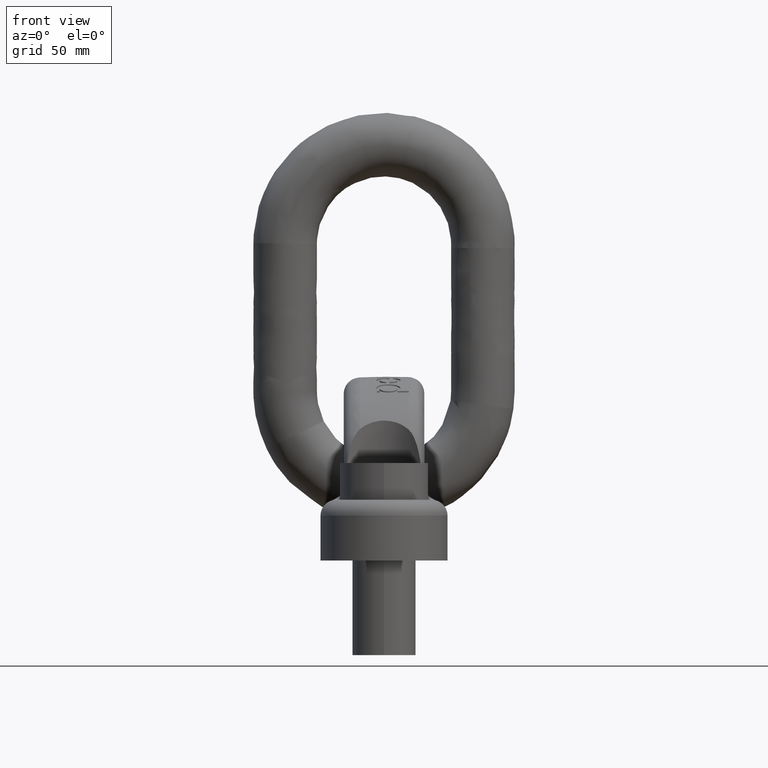
[diagram: clean part render]
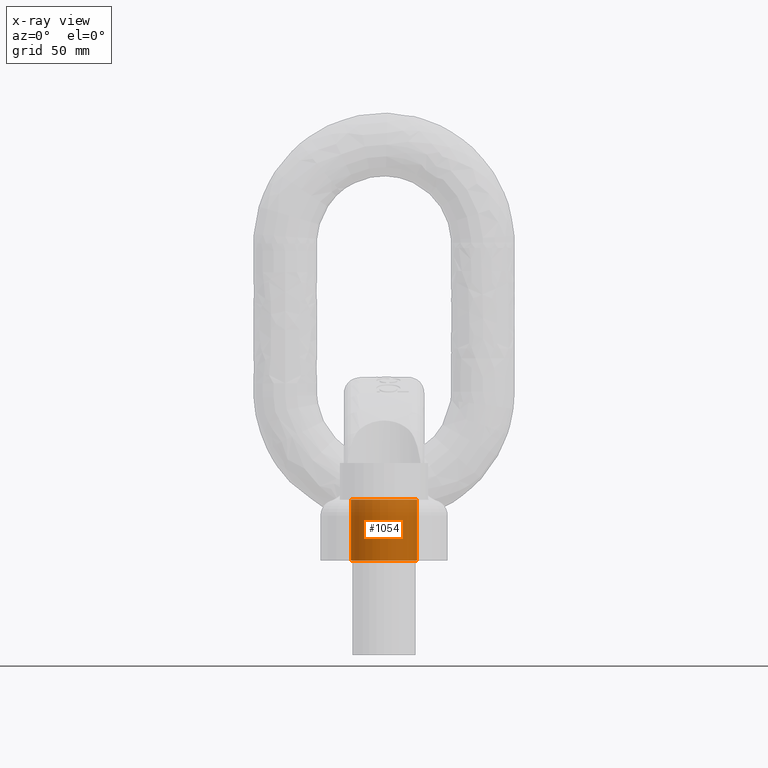
[diagram: x-ray — body ghosted, one internal face saturated and labeled with its STEP entity id]
A machine part, front view, then the same camera in x-ray: the body is ghosted and one INTERNAL B-rep face — a face not visible from any outside direction — is saturated and labeled: STEP entity #1054.
In plain terms, the highlighted cylindrical surface (bore or boss wall) has radius 23.5 mm, axis along (0, 0, 1).
Its self-contained STEP definition (entity closure, byte-faithful):
#1054=ADVANCED_FACE('',(#1484,#1485),#1181,.F.);
#1181=CYLINDRICAL_SURFACE('',#3739,23.5);
#1484=FACE_BOUND('',#1593,.T.);
#1485=FACE_BOUND('',#1594,.T.);
#1593=EDGE_LOOP('',(#2427));
#1594=EDGE_LOOP('',(#2428));
#2003=CIRCLE('',#3681,23.5);
#2009=CIRCLE('',#3690,23.5);
#2427=ORIENTED_EDGE('',*,*,#3323,.T.);
#2428=ORIENTED_EDGE('',*,*,#3331,.F.);
#3029=VERTEX_POINT('',#5302);
#3032=VERTEX_POINT('',#5316);
#3323=EDGE_CURVE('',#3029,#3029,#2003,.T.);
#3331=EDGE_CURVE('',#3032,#3032,#2009,.T.);
#3681=AXIS2_PLACEMENT_3D('',#5301,#3997,#3998);
#3690=AXIS2_PLACEMENT_3D('',#5315,#4017,#4018);
#3739=AXIS2_PLACEMENT_3D('',#6044,#4118,#4119);
#3997=DIRECTION('',(0.,0.,1.));
#3998=DIRECTION('',(1.,0.,0.));
#4017=DIRECTION('',(0.,0.,1.));
#4018=DIRECTION('',(1.,0.,0.));
#4118=DIRECTION('',(0.,0.,1.));
#4119=DIRECTION('',(1.,0.,0.));
#5301=CARTESIAN_POINT('',(0.,100.,42.9999999999999));
#5302=CARTESIAN_POINT('',(23.5,100.,42.9999999999999));
#5315=CARTESIAN_POINT('',(0.,100.,-8.67361737988404E-16));
#5316=CARTESIAN_POINT('',(23.5,100.,-8.67361737988404E-16));
#6044=CARTESIAN_POINT('',(0.,100.,-4.30000000000001));